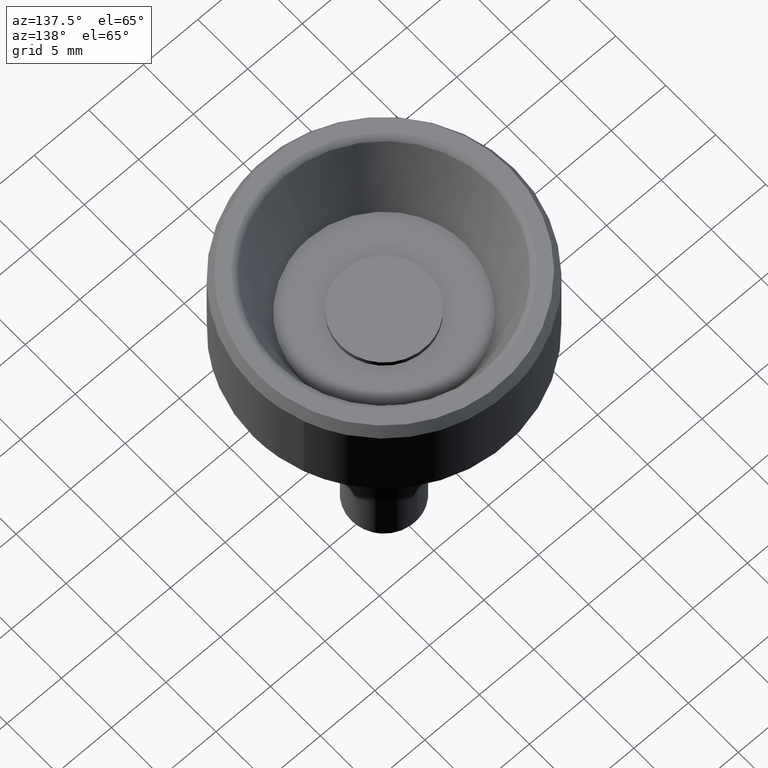
[diagram: clean part render]
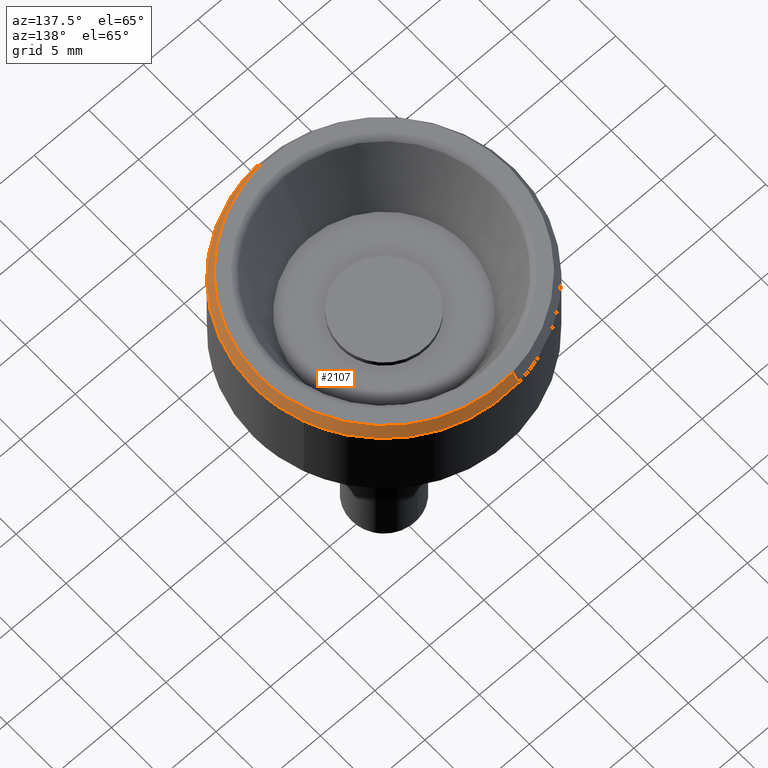
[diagram: same view with one face highlighted and labeled with its STEP entity id]
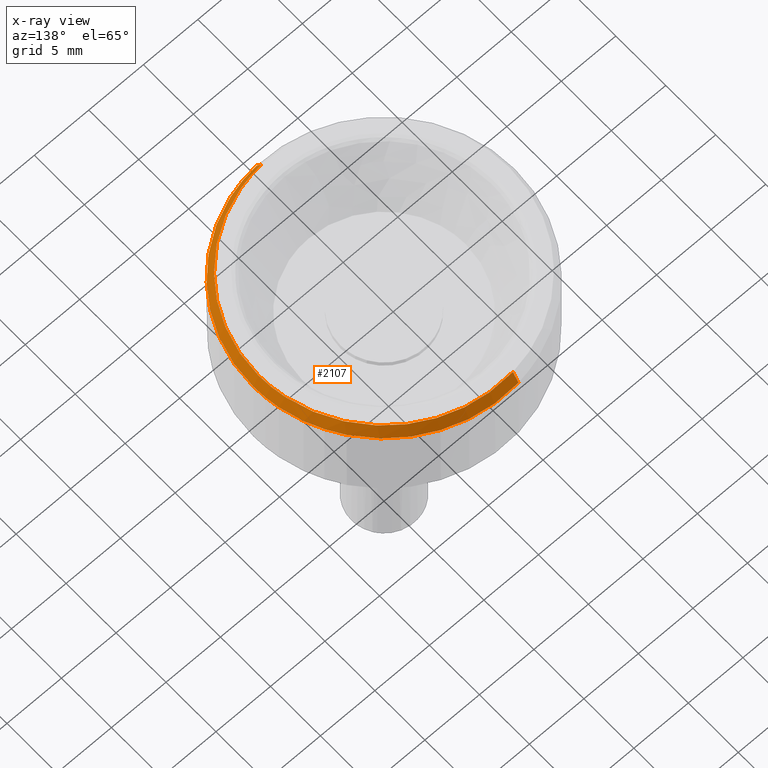
[diagram: x-ray of the same camera — body ghosted, the highlighted face saturated]
A machine part, auxiliary view. The second image highlights one B-rep face of the part: STEP entity #2107.
The next image is the same camera in x-ray: the body ghosted, the highlighted face saturated — about 0% of this face is hidden behind the body in this view.
In plain terms, the highlighted face is a freeform B-spline surface patch.
Its self-contained STEP definition (entity closure, byte-faithful):
#1911=CARTESIAN_POINT('',(11.233724680500149,4.219411072969484,15.000000000000020));
#1912=VERTEX_POINT('',#1911);
#1913=CARTESIAN_POINT('',(12.0,0.0,15.0));
#1914=VERTEX_POINT('',#1913);
#1915=CARTESIAN_POINT('',(11.233724680500151,4.219411072969484,15.000000000000020));
#1916=CARTESIAN_POINT('',(12.000000000000005,2.179286083997190,15.000000000000005));
#1917=CARTESIAN_POINT('',(12.0,0.0,15.0));
#1925=(BOUNDED_CURVE()B_SPLINE_CURVE(2,(#1915,#1916,#1917),.UNSPECIFIED.,.F.,.U.)B_SPLINE_CURVE_WITH_KNOTS((3,3),(0.440284235853841,0.500000000000000),.UNSPECIFIED.)CURVE()GEOMETRIC_REPRESENTATION_ITEM()RATIONAL_B_SPLINE_CURVE((0.893499634125223,0.930038630501306,1.0))REPRESENTATION_ITEM(''));
#1926=EDGE_CURVE('',#1912,#1914,#1925,.T.);
#1928=CARTESIAN_POINT('',(0.732582474418469,-11.977617581062409,14.999999999999940));
#1929=VERTEX_POINT('',#1928);
#1930=CARTESIAN_POINT('',(12.0,0.0,15.0));
#1931=CARTESIAN_POINT('',(12.0,-11.288472802867677,14.999999999999995));
#1932=CARTESIAN_POINT('',(0.732582474418469,-11.977617581062406,14.999999999999938));
#1940=(BOUNDED_CURVE()B_SPLINE_CURVE(2,(#1930,#1931,#1932),.UNSPECIFIED.,.F.,.U.)B_SPLINE_CURVE_WITH_KNOTS((3,3),(0.500000000000000,0.739332962241958),.UNSPECIFIED.)CURVE()GEOMETRIC_REPRESENTATION_ITEM()RATIONAL_B_SPLINE_CURVE((1.0,0.719603993283178,0.976072041673180))REPRESENTATION_ITEM(''));
#1941=EDGE_CURVE('',#1914,#1929,#1940,.T.);
#1982=CARTESIAN_POINT('',(-1.416410815883461,11.916114316363929,14.999999999999570));
#1983=VERTEX_POINT('',#1982);
#1984=CARTESIAN_POINT('',(-1.416410815883461,11.916114316363931,14.999999999999570));
#1985=CARTESIAN_POINT('',(-0.710689435825279,12.000000000000002,15.000000000000002));
#1986=CARTESIAN_POINT('',(0.0,12.0,15.0));
#1987=CARTESIAN_POINT('',(8.311318799402615,12.000000000000002,15.000000000000002));
#1988=CARTESIAN_POINT('',(11.233724680500151,4.219411072969484,15.000000000000020));
#1996=(BOUNDED_CURVE()B_SPLINE_CURVE(2,(#1984,#1985,#1986,#1987,#1988),.UNSPECIFIED.,.F.,.U.)B_SPLINE_CURVE_WITH_KNOTS((3,2,3),(0.229562473515578,0.250000000000000,0.440284235853841),.UNSPECIFIED.)CURVE()GEOMETRIC_REPRESENTATION_ITEM()RATIONAL_B_SPLINE_CURVE((0.956026754187756,0.976055948333570,1.0,0.777068150685241,0.893499634125223))REPRESENTATION_ITEM(''));
#1997=EDGE_CURVE('',#1983,#1912,#1996,.T.);
#2036=CARTESIAN_POINT('',(-1.355918270619513,11.407196934102613,16.025000000000002));
#2037=CARTESIAN_POINT('',(-1.029449195228768,11.446002732465860,16.025000000000002));
#2038=CARTESIAN_POINT('',(-0.701295097906670,11.466073496871189,16.024999999999999));
#2039=CARTESIAN_POINT('',(10.764778398964523,12.167368594777862,16.024999999999995));
#2040=CARTESIAN_POINT('',(11.466073496871189,0.701295097906670,16.024999999999999));
#2041=CARTESIAN_POINT('',(12.167368594777862,-10.764778398964523,16.024999999999995));
#2042=CARTESIAN_POINT('',(0.701295097906670,-11.466073496871189,16.024999999999999));
#2043=CARTESIAN_POINT('',(-1.417923129512642,11.928837250920528,14.974375000000004));
#2044=CARTESIAN_POINT('',(-1.076524932366406,11.969417601706205,14.974374999999998));
#2045=CARTESIAN_POINT('',(-0.733364658831074,11.990406183167179,14.974375000000000));
#2046=CARTESIAN_POINT('',(11.257041524336104,12.723770841998254,14.974375000000004));
#2047=CARTESIAN_POINT('',(11.990406183167179,0.733364658831074,14.974375000000000));
#2048=CARTESIAN_POINT('',(12.723770841998254,-11.257041524336104,14.974375000000004));
#2049=CARTESIAN_POINT('',(0.733364658831074,-11.990406183167179,14.974375000000000));
#2057=(BOUNDED_SURFACE()B_SPLINE_SURFACE(2,1,((#2036,#2043),(#2037,#2044),(#2038,#2045),(#2039,#2046),(#2040,#2047),(#2041,#2048),(#2042,#2049)),.UNSPECIFIED.,.F.,.F.,.U.)B_SPLINE_SURFACE_WITH_KNOTS((3,2,2,3),(2,2),(0.0,0.796139177559208,20.699618616539379,40.603098055519560),(0.0,1.0),.UNSPECIFIED.)GEOMETRIC_REPRESENTATION_ITEM()RATIONAL_B_SPLINE_SURFACE(((0.977505800795127,0.977505800795127),(0.988284271247462,0.988284271247462),(1.0,1.0),(0.707106781186548,0.707106781186548),(1.0,1.0),(0.707106781186548,0.707106781186548),(1.0,1.0)))REPRESENTATION_ITEM('')SURFACE());
#2058=ORIENTED_EDGE('',*,*,#1997,.F.);
#2059=CARTESIAN_POINT('',(-1.357393698569069,11.419609553181720,15.999999999997030));
#2060=VERTEX_POINT('',#2059);
#2061=CARTESIAN_POINT('',(-1.357393698569069,11.419609553181720,15.999999999997030));
#2062=CARTESIAN_POINT('',(-1.416410815883461,11.916114316363929,14.999999999999570));
#2063=QUASI_UNIFORM_CURVE('',1,(#2061,#2062),.UNSPECIFIED.,.F.,.U.);
#2064=EDGE_CURVE('',#2060,#1983,#2063,.T.);
#2065=ORIENTED_EDGE('',*,*,#2064,.F.);
#2066=CARTESIAN_POINT('',(11.500000000000000,0.0,16.0));
#2067=VERTEX_POINT('',#2066);
#2068=CARTESIAN_POINT('',(-1.357393698569069,11.419609553181722,15.999999999997026));
#2069=CARTESIAN_POINT('',(-0.681077376013309,11.500000000000004,16.000000000000004));
#2070=CARTESIAN_POINT('',(0.0,11.500000000000000,16.0));
#2071=CARTESIAN_POINT('',(11.500000000000000,11.500000000000000,15.999999999999998));
#2072=CARTESIAN_POINT('',(11.500000000000000,0.0,16.0));
#2080=(BOUNDED_CURVE()B_SPLINE_CURVE(2,(#2068,#2069,#2070,#2071,#2072),.UNSPECIFIED.,.F.,.U.)B_SPLINE_CURVE_WITH_KNOTS((3,2,3),(0.229562473515166,0.250000000000000,0.500000000000000),.UNSPECIFIED.)CURVE()GEOMETRIC_REPRESENTATION_ITEM()RATIONAL_B_SPLINE_CURVE((0.956026754186948,0.976055948333087,1.0,0.707106781186548,1.0))REPRESENTATION_ITEM(''));
#2081=EDGE_CURVE('',#2060,#2067,#2080,.T.);
#2082=ORIENTED_EDGE('',*,*,#2081,.T.);
#2083=CARTESIAN_POINT('',(0.702058204664164,-11.478550181851871,15.999999999997581));
#2084=VERTEX_POINT('',#2083);
#2085=CARTESIAN_POINT('',(11.500000000000000,0.0,16.0));
#2086=CARTESIAN_POINT('',(11.499999999999998,-10.818119769390449,16.000000000000007));
#2087=CARTESIAN_POINT('',(0.702058204664164,-11.478550181851871,15.999999999997582));
#2095=(BOUNDED_CURVE()B_SPLINE_CURVE(2,(#2085,#2086,#2087),.UNSPECIFIED.,.F.,.U.)B_SPLINE_CURVE_WITH_KNOTS((3,3),(0.500000000000000,0.739332962241570),.UNSPECIFIED.)CURVE()GEOMETRIC_REPRESENTATION_ITEM()RATIONAL_B_SPLINE_CURVE((1.0,0.719603993283633,0.976072041672347))REPRESENTATION_ITEM(''));
#2096=EDGE_CURVE('',#2067,#2084,#2095,.T.);
#2097=ORIENTED_EDGE('',*,*,#2096,.T.);
#2098=CARTESIAN_POINT('',(0.702058204664164,-11.478550181851871,15.999999999997581));
#2099=CARTESIAN_POINT('',(0.732582474418469,-11.977617581062409,14.999999999999940));
#2100=QUASI_UNIFORM_CURVE('',1,(#2098,#2099),.UNSPECIFIED.,.F.,.U.);
#2101=EDGE_CURVE('',#2084,#1929,#2100,.T.);
#2102=ORIENTED_EDGE('',*,*,#2101,.T.);
#2103=ORIENTED_EDGE('',*,*,#1941,.F.);
#2104=ORIENTED_EDGE('',*,*,#1926,.F.);
#2105=EDGE_LOOP('',(#2058,#2065,#2082,#2097,#2102,#2103,#2104));
#2106=FACE_OUTER_BOUND('',#2105,.T.);
#2107=ADVANCED_FACE('',(#2106),#2057,.T.);